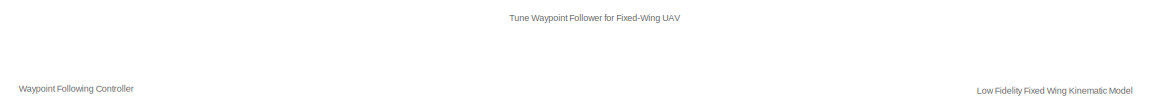
[diagram: root canvas - part 1/2, full width, top band]
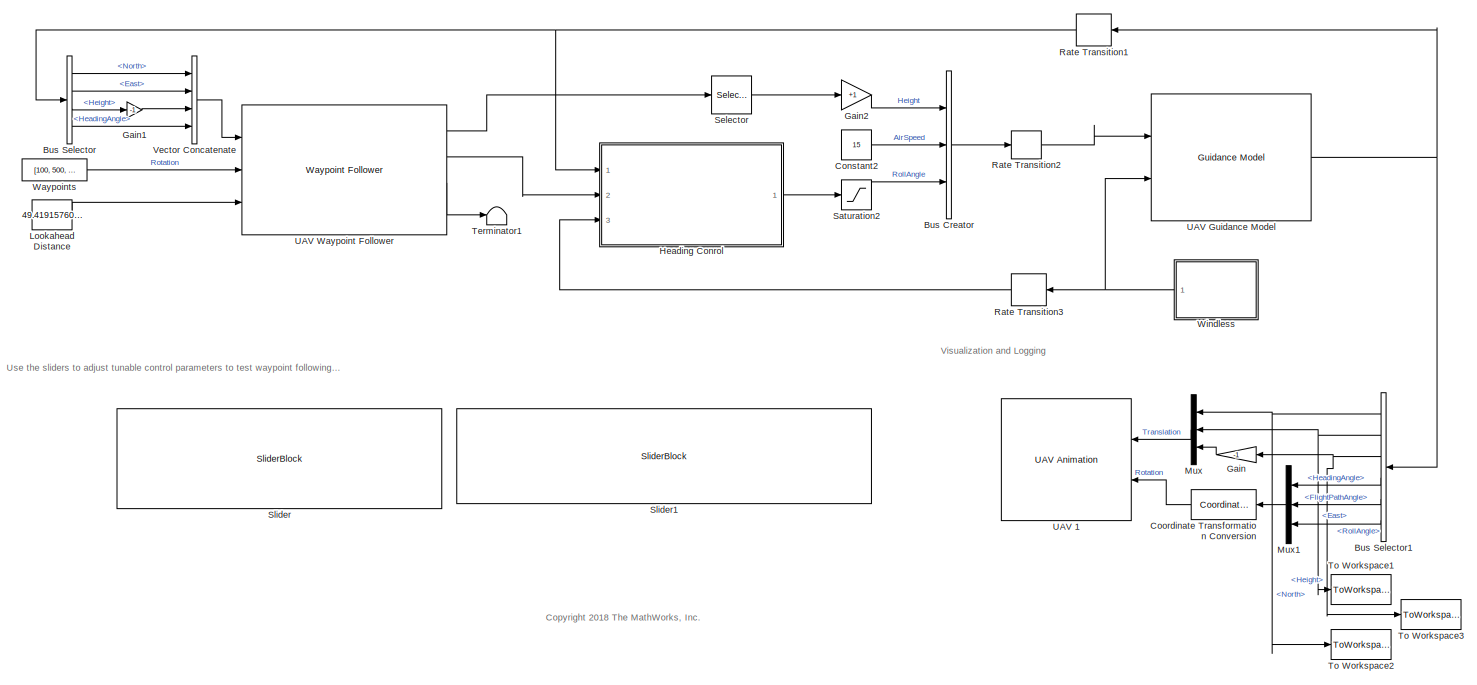
[diagram: root canvas - part 2/2, most of the canvas]
MODEL slx_56ac76e320a3
KIND model
CONFIG AbsTol = auto
CONFIG EnableMultiTasking = off
CONFIG FixedStep = 0.01
CONFIG MaxStep = auto
CONFIG MinStep = auto
CONFIG RelTol = 1e-3
CONFIG SampleTimeConstraint = Unconstrained
CONFIG SolverName = FixedStepAuto
CONFIG StartTime = 0
CONFIG StopTime = 100
BLOCK [BusCreator] Bus Creator
  DisplayOption = bar
  InheritFromInputs = on
  Inputs = 3
  NonVirtualBus = on
  OutDataTypeStr = Bus: FixedWingControlBus
  Ports = [3, 1]
BLOCK [BusSelector] Bus Selector
  OutputSignals = North,East,Height,HeadingAngle
  Ports = [1, 4]
BLOCK [BusSelector] Bus Selector1
  OutputSignals = North,East,Height,HeadingAngle,FlightPathAngle,RollAngle
  Ports = [1, 6]
BLOCK [Constant] Constant2
  Value = 15
BLOCK [Reference] Coordinate Transformation Conversion  REF=robotcorelib/Coordinate Transformation Conversion
  Ports = [1, 1]
  SourceBlock = robotcorelib/Coordinate Transformation Conversion
  SourceProductBaseCode = NV,RO,RR,UV
  SourceType = robotics.slcore.internal.block.CoordinateTransformationConversion
BLOCK [Gain] Gain
  Gain = -1
BLOCK [Gain] Gain1
  Gain = -1
BLOCK [Gain] Gain2
  Gain = +1
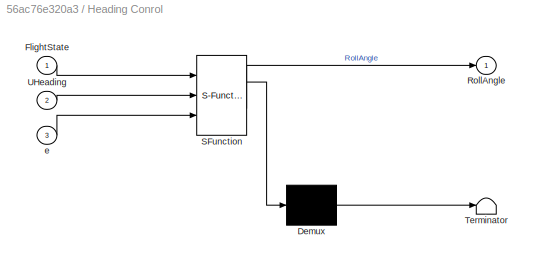
BLOCK [SubSystem] Heading Conrol
  ErrorFcn = Stateflow.Translate.translate
  PermitHierarchicalResolution = ExplicitOnly
  Ports = [3, 1]
  RequestExecContextInheritance = off
  SFBlockType = MATLAB Function
  TreatAsAtomicUnit = on
BLOCK [Demux] Heading Conrol/ Demux 
  Outputs = 1
  Ports = [1, 1]
BLOCK [S-Function] Heading Conrol/ SFunction 
  EnableBusSupport = on
  FunctionName = sf_sfun
  Parameters = PHeadingAngle
  PortCounts = [3 2]
  Ports = [3, 2]
  SFcnIsStateOwnerBlock = off
  SFunctionDeploymentMode = off
  Tag = Stateflow S-Function 2
BLOCK [Terminator] Heading Conrol/ Terminator 
BLOCK [Inport] Heading Conrol/FlightState
BLOCK [Outport] Heading Conrol/RollAngle
  VectorParamsAs1DForOutWhenUnconnected = off
BLOCK [Inport] Heading Conrol/UHeading
  Port = 2
BLOCK [Inport] Heading Conrol/e
  Port = 3
BLOCK [Constant] Lookahead Distance
  Value = 49.41915760869565
BLOCK [Mux] Mux
  DisplayOption = bar
  Inputs = 3
  Ports = [3, 1]
BLOCK [Mux] Mux1
  DisplayOption = bar
  Inputs = 3
  Ports = [3, 1]
BLOCK [RateTransition] Rate Transition1
  OutPortSampleTime = 0.01
BLOCK [RateTransition] Rate Transition2
  OutPortSampleTime = 0.1
BLOCK [RateTransition] Rate Transition3
  OutPortSampleTime = 0.01
BLOCK [Saturate] Saturation2
  LowerLimit = -20/180*pi
  UpperLimit = 20/180*pi
BLOCK [Selector] Selector
  IndexOptions = Index vector (dialog)
  Indices = [3]
  InputPortWidth = 3
  OutputSizes = 1
  Ports = [1, 1]
BLOCK [SliderBlock] Slider
  ScaleMax = 10000
  ScaleMin = 1
  ScaleType = Log
BLOCK [SliderBlock] Slider1
  ScaleMax = 10000
  ScaleMin = 1
  ScaleType = Log
BLOCK [Terminator] Terminator1
BLOCK [ToWorkspace] To Workspace1
  MaxDataPoints = inf
  Ports = [1]
  SampleTime = -1
  Save2DSignal = 2-D array (concatenate along first dimension)
  VariableName = East
BLOCK [ToWorkspace] To Workspace2
  MaxDataPoints = inf
  Ports = [1]
  SampleTime = -1
  Save2DSignal = 2-D array (concatenate along first dimension)
  VariableName = North
BLOCK [ToWorkspace] To Workspace3
  MaxDataPoints = inf
  Ports = [1]
  SampleTime = -1
  Save2DSignal = 2-D array (concatenate along first dimension)
  VariableName = Height
BLOCK [Reference] UAV 1  REF=uavutilslib/UAV Animation
  Ports = [2]
  SourceBlock = uavutilslib/UAV Animation
  SourceProductBaseCode = UV
  SourceType = uav.sluav.internal.system.UAVAnimation
BLOCK [Reference] UAV Guidance Model  REF=uavalgslib/Guidance Model
  Ports = [2, 1]
  SourceBlock = uavalgslib/Guidance Model
  SourceProductBaseCode = UV
  SourceType = Guidance Model
BLOCK [Reference] UAV Waypoint Follower  REF=uavalgslib/Waypoint Follower
  Ports = [3, 4]
  SourceBlock = uavalgslib/Waypoint Follower
  SourceProductBaseCode = UV
  SourceType = uav.sluav.internal.system.WaypointFollower
BLOCK [Concatenate] Vector Concatenate
  NumInputs = 4
  Ports = [4, 1]
BLOCK [Constant] Waypoints
  Value = [100, 500, 1000]
  VectorParams1D = off
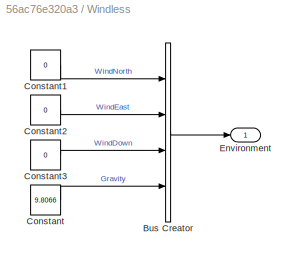
BLOCK [SubSystem] Windless
  Ports = [0, 1]
  RequestExecContextInheritance = off
  VariantControl = NoWind
BLOCK [BusCreator] Windless/Bus Creator
  DisplayOption = bar
  InheritFromInputs = on
  Inputs = 4
  NonVirtualBus = on
  OutDataTypeStr = Bus: FixedWingEnvironmentBus
  Ports = [4, 1]
BLOCK [Constant] Windless/Constant
  Value = 9.8066
BLOCK [Constant] Windless/Constant1
  Value = 0
BLOCK [Constant] Windless/Constant2
  Value = 0
BLOCK [Constant] Windless/Constant3
  Value = 0
BLOCK [Outport] Windless/Environment
  VectorParamsAs1DForOutWhenUnconnected = off
ANNOTATION (root): Use the sliders to adjust tunable control parameters to test waypoint following behavior.
ANNOTATION (root): <copyright redacted>
ANNOTATION (root): Tune Waypoint Follower for Fixed-Wing UAV
ANNOTATION (root): Low Fidelity Fixed Wing Kinematic Model
ANNOTATION (root): Visualization and Logging
ANNOTATION (root): Waypoint Following Controller
LINE Bus Creator:1 -> Rate Transition2:1
NET Bus Selector1:1 -> Mux:1, To Workspace2:1
NET Bus Selector1:2 -> Mux:2, To Workspace1:1
NET Bus Selector1:3 -> Gain:1, To Workspace3:1
LINE Bus Selector1:4 -> Mux1:1
LINE Bus Selector1:5 -> Mux1:2
LINE Bus Selector1:6 -> Mux1:3
LINE Bus Selector:1 -> Vector Concatenate:1
LINE Bus Selector:2 -> Vector Concatenate:2
LINE Bus Selector:3 -> Gain1:1
LINE Bus Selector:4 -> Vector Concatenate:4
LINE Constant2:1 -> Bus Creator:2
LINE Coordinate Transformation Conversion:1 -> UAV 1:2
LINE Gain1:1 -> Vector Concatenate:3
LINE Gain2:1 -> Bus Creator:1
LINE Gain:1 -> Mux:3
LINE Heading Conrol:1 -> Saturation2:1
LINE Lookahead Distance:1 -> UAV Waypoint Follower:3
LINE Mux1:1 -> Coordinate Transformation Conversion:1
LINE Mux:1 -> UAV 1:1
NET Rate Transition1:1 -> Bus Selector:1, Heading Conrol:1
LINE Rate Transition2:1 -> UAV Guidance Model:1
LINE Rate Transition3:1 -> Heading Conrol:3
LINE Saturation2:1 -> Bus Creator:3
LINE Selector:1 -> Gain2:1
NET UAV Guidance Model:1 -> Bus Selector1:1, Rate Transition1:1
LINE UAV Waypoint Follower:1 -> Selector:1
LINE UAV Waypoint Follower:2 -> Heading Conrol:2
LINE UAV Waypoint Follower:3 -> Terminator1:1
LINE Vector Concatenate:1 -> UAV Waypoint Follower:1
LINE Waypoints:1 -> UAV Waypoint Follower:2
LINE Windless/Bus Creator:1 -> Windless/Environment:1
LINE Windless/Constant1:1 -> Windless/Bus Creator:1
LINE Windless/Constant2:1 -> Windless/Bus Creator:2
LINE Windless/Constant3:1 -> Windless/Bus Creator:3
LINE Windless/Constant:1 -> Windless/Bus Creator:4
NET Windless:1 -> Rate Transition3:1, UAV Guidance Model:2
note: NET lines group one-source signal fan-out (src -> all destinations, sorted); 1:1 wires keep LINE
CHART Heading Conrol states=1 transitions=1
  STATE_LABEL 'eML_blk_kernel()'
  STATE_LABEL 'SCRIPT:\nfunction RollAngle = fcn(FlightState, UHeading, e, PHeadingAngle)\n    \n    Va = FlightState.AirSpeed;\n    HeadingAngle = FlightState.HeadingAngle;\n    FlightPathAngle = FlightState.FlightPathAngle;\n    \n    YawAngle = HeadingAngle - asin((1/Va)*[e.WindNorth, e.WindEast]*[-sin(HeadingAngle); cos(HeadingAngle)]);\n    b = [cos(HeadingAngle)*cos(FlightPathAngle), sin(HeadingAngle)*cos(FlightPa...<+303ch>'
CHART  states=0 transitions=0
